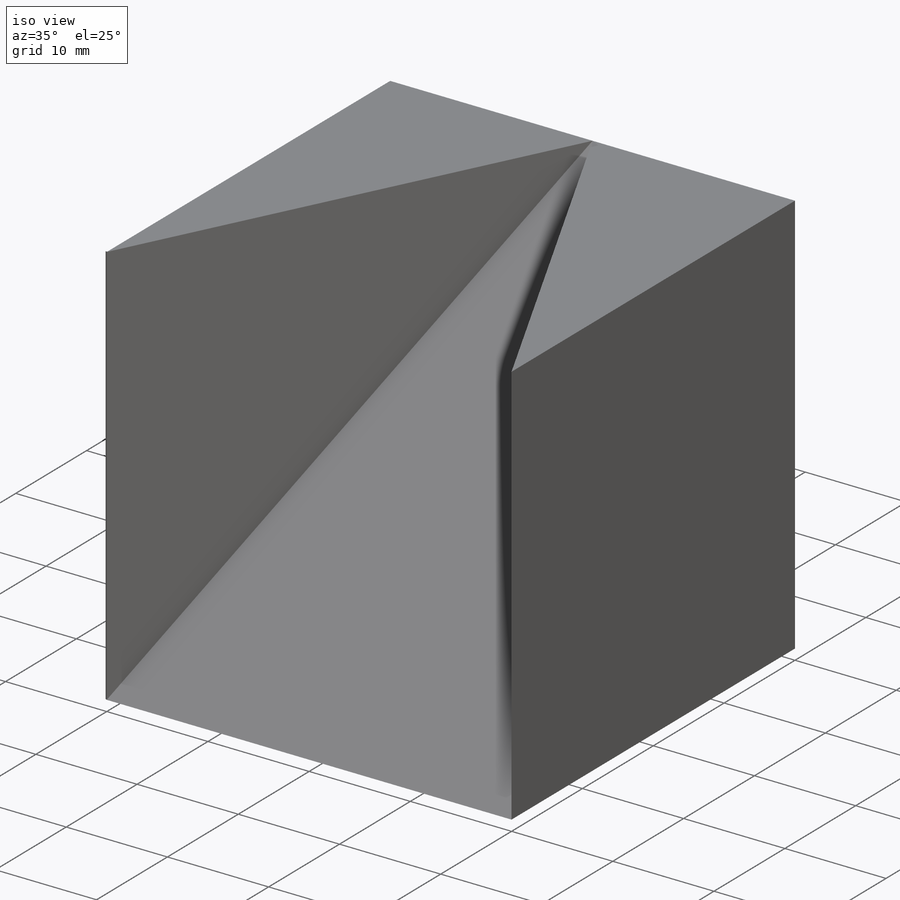
[diagram: iso view]
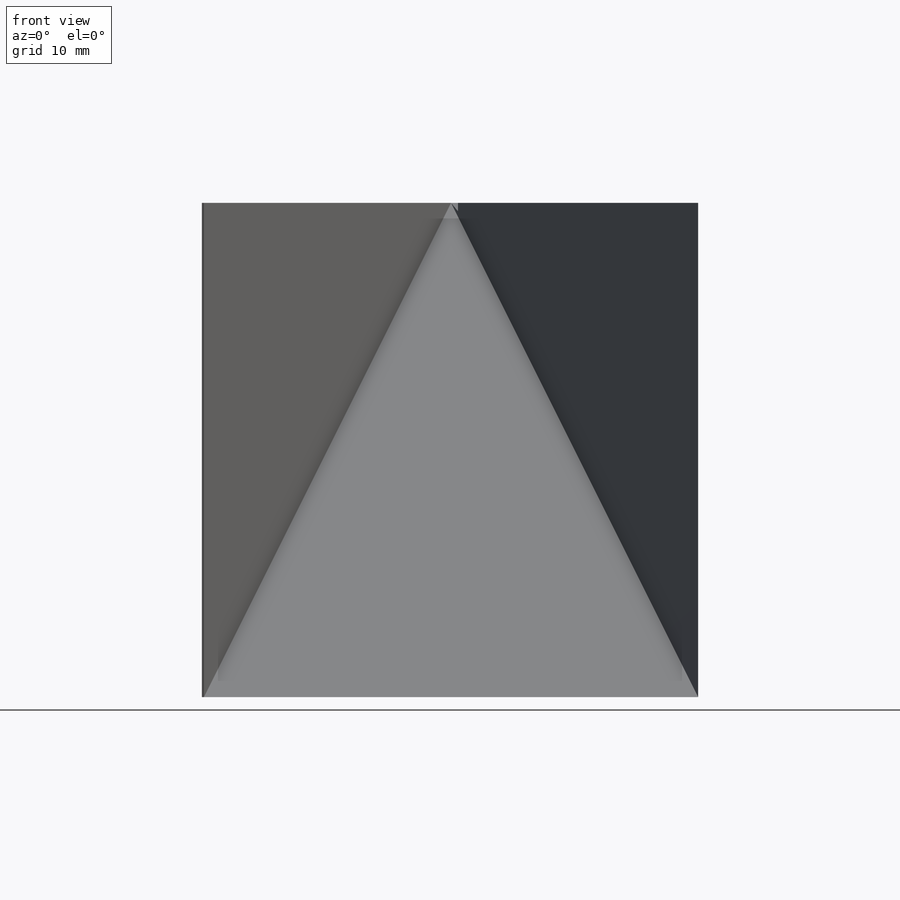
[diagram: front view]
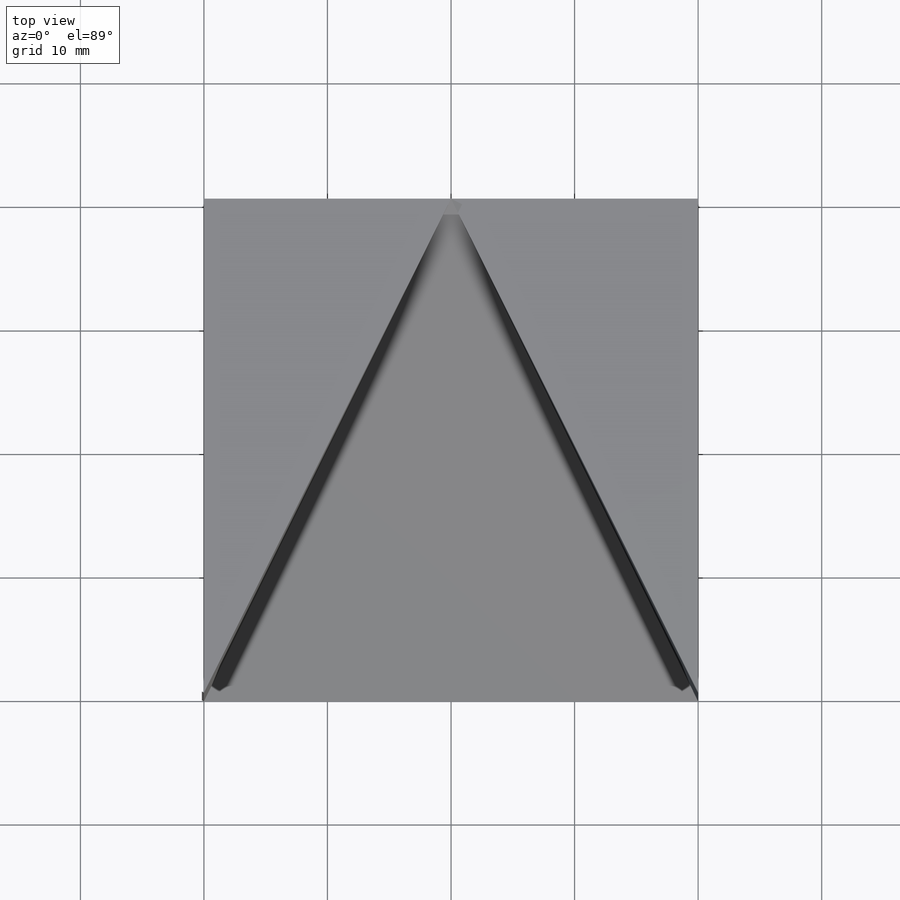
[diagram: top view]
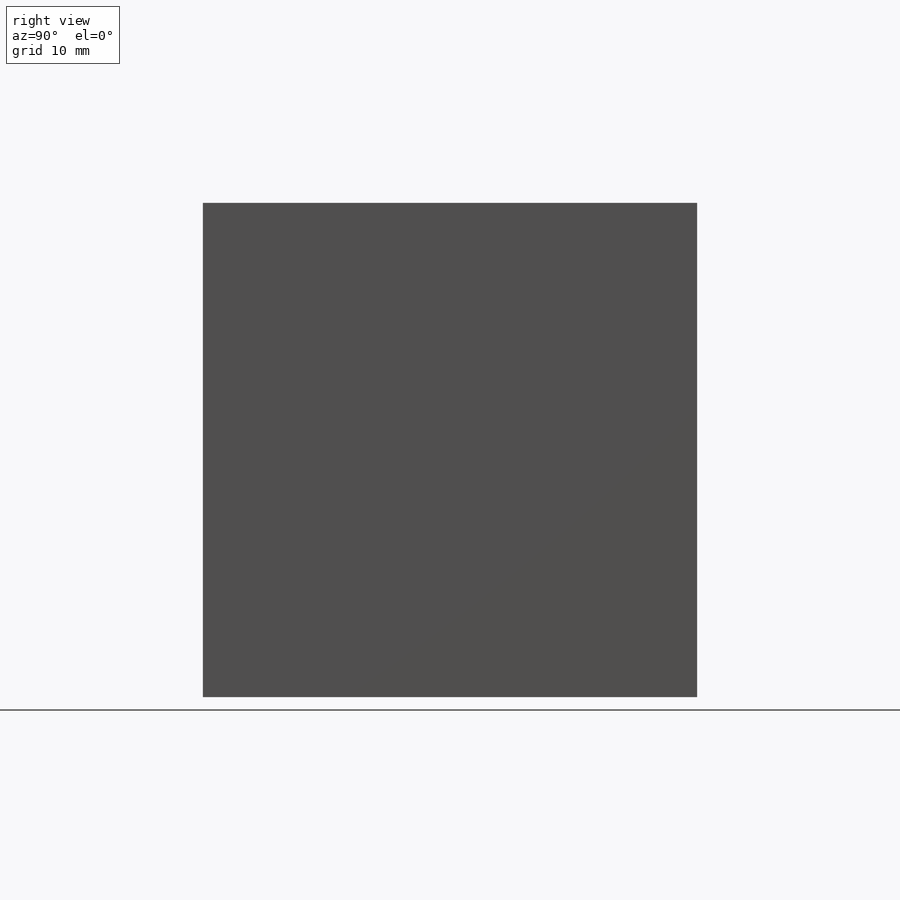
[diagram: right view]
SOLIDWORKS PART (.sldprt)
format: sldprt  version: not decoded by parser v0  size: 229,376 bytes
history: native  units: mm
features: sketch x10, cut_extrude x8, plane x3, extrude x2, material x1 (+13 scaffold rows collapsed)
feature tree (37):
  scaffold x13  (default folders/planes/origin — collapsed)
  material  "Material <not specified>"
  sketch  "Sketch1"  dims[D1=40.0mm D2=40.0mm]
  extrude  "Boss-Extrude1"  Depth=40mm
  plane  "Plane1"
  sketch  "Sketch2"
  cut_extrude  "Cut-Extrude1"  Depth=40mm
  plane  "Plane2"
  plane  "Plane3"
  sketch  "Sketch4"
  cut_extrude  "Cut-Extrude3"  Depth=40mm
  sketch  "Sketch5"  dims[D1=~45.872808mm]
  cut_extrude  "Cut-Extrude5"  Depth=1mm
  sketch  "Sketch6"
  extrude  "Boss-Extrude2"  Depth=26mm
  sketch  "Sketch7"  dims[c1.D1=~38.755981mm c1.D2=~38.909277mm c2.D1=~38.755981mm c2.D2=~8.793646mm]
  cut_extrude  "Cut-Extrude7"  Depth=5mm
  sketch  "Sketch8"
  cut_extrude  "Cut-Extrude8"  Depth=5mm
  sketch  "Sketch9"
  cut_extrude  "Cut-Extrude9"  Depth=5mm
  sketch  "Sketch10"  dims[D1=40.0mm D2=40.0mm]
  cut_extrude  "Cut-Extrude10"  Depth=50mm
  sketch  "Sketch11"  dims[c1.D1=~56.739461mm c1.D2=~49.026259mm c1.D3=~49.026271mm c2.D2=~49.026259mm c2.D3=~16.823108mm c2.D4=~10.414756mm]
  cut_extrude  "Cut-Extrude11"  Depth=50mm
decode coverage: 15 of 20 modeling features carry decoded parameters
note: ~ marks probable driven/reference dimensions
note: suppression state not decoded; provenance and decode notes live in map.json
